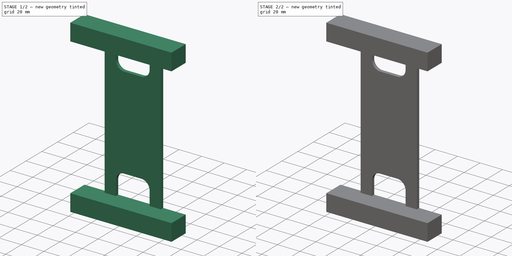
[diagram: build sequence overview — one tinted view per stage of 2, left to right]
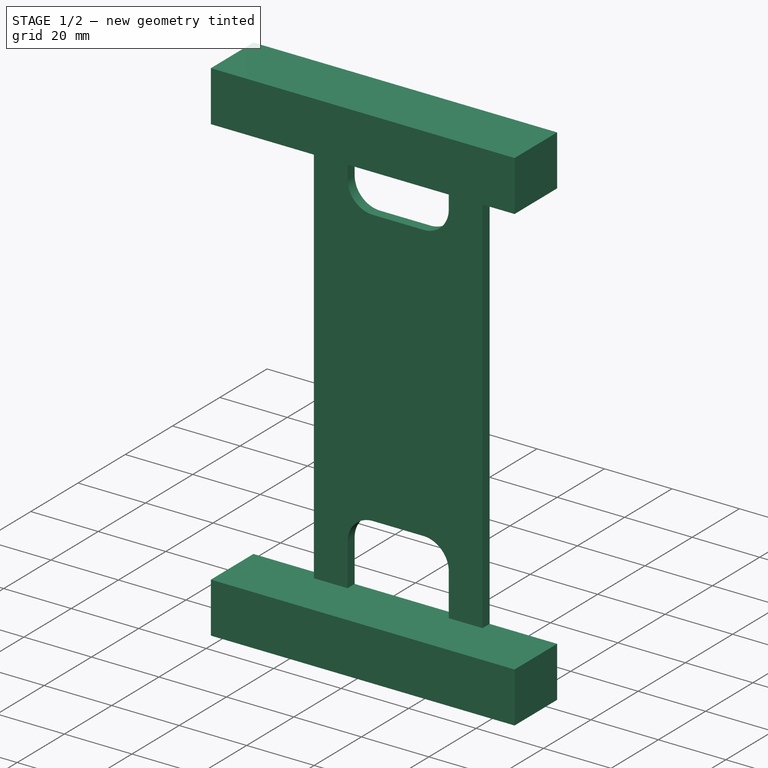
[diagram: stage 1 of 2 — iso view after this stage's code; geometry added in this stage tinted green]
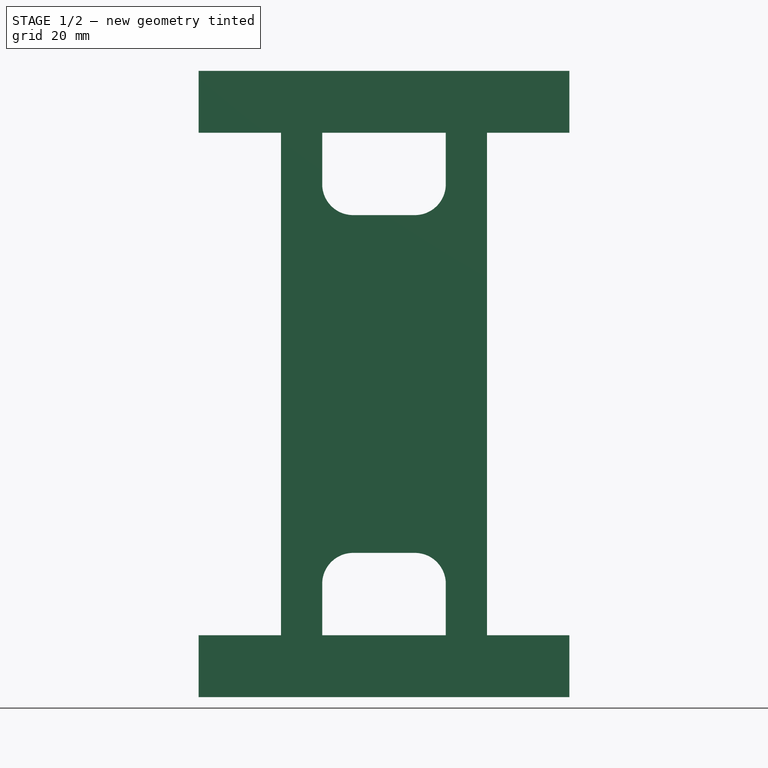
[diagram: stage 1 of 2 — front view after this stage's code; geometry added in this stage tinted green]
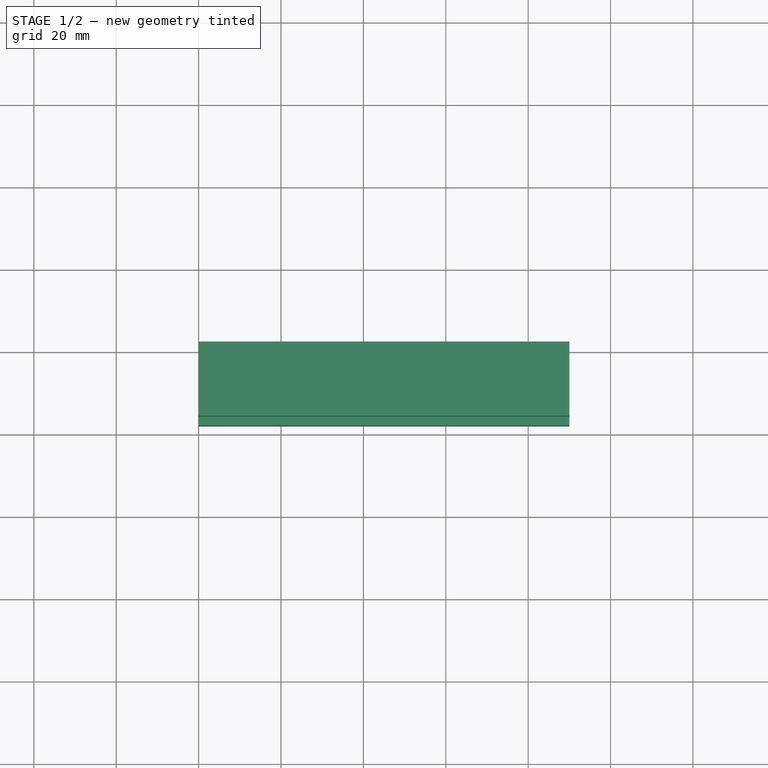
[diagram: stage 1 of 2 — top view after this stage's code; geometry added in this stage tinted green]
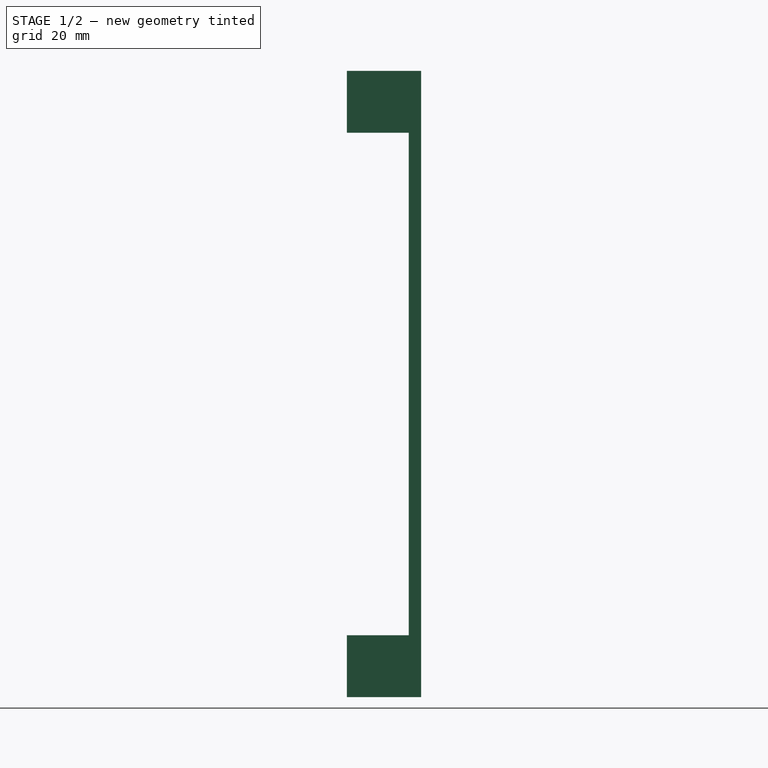
[diagram: stage 1 of 2 — right view after this stage's code; geometry added in this stage tinted green]
FCSTD DOCUMENT  (FreeCAD 1.0R39285 (Git))
Label: C1045 Rev 4
License: All rights reserved
LicenseURL: https://en.wikipedia.org/wiki/All_rights_reserved
objects: Sketcher::SketchObject×3, PartDesign::Pad×2, PartDesign::Pocket×1, PartDesign::Body×1, TechDraw::DrawSVGTemplate×1, TechDraw::DrawProjGroupItem×1, TechDraw::DrawViewDimension×1, TechDraw::DrawPage×1
note: 18 computed .brp shape members not serialized (recipe doc carries the construction recipe); baked Part::Feature solids carry a one-line shape summary decoded from their .brp

FEATURE [Sketcher::SketchObject] Sketch
  ArcFitTolerance = 1e-06
  AttachmentSupport = -> [XZ_Plane]
  FullyConstrained = true
  MakeInternals = false
  MapMode = 5
  Placement = pos=(0,0,0) rot=(1,0,0;1.5708rad)
  sketch-geometry (36):
    g0: LineSegment StartX=-3.6e-15 StartY=152 StartZ=0 EndX=-3.6e-15 EndY=137 EndZ=0
    g1: LineSegment StartX=-3.6e-15 StartY=152 StartZ=0 EndX=90 EndY=152 EndZ=0
    g2: LineSegment StartX=90 StartY=152 StartZ=0 EndX=90 EndY=137 EndZ=0
    g3: LineSegment StartX=-3.6e-15 StartY=15 StartZ=0 EndX=-3.6e-15 EndY=0 EndZ=0
    g4: LineSegment StartX=-3.6e-15 StartY=0 StartZ=0 EndX=90 EndY=0 EndZ=0
    g5: LineSegment StartX=90 StartY=0 StartZ=0 EndX=90 EndY=15 EndZ=0
    g6: LineSegment StartX=-3.6e-15 StartY=15 StartZ=0 EndX=20 EndY=15 EndZ=0
    g7: LineSegment StartX=20 StartY=15 StartZ=0 EndX=20 EndY=137 EndZ=0
    g8: LineSegment StartX=-3.6e-15 StartY=137 StartZ=0 EndX=20 EndY=137 EndZ=0
    g9: LineSegment StartX=90 StartY=137 StartZ=0 EndX=70 EndY=137 EndZ=0
    g10: LineSegment StartX=70 StartY=137 StartZ=0 EndX=70 EndY=15 EndZ=0
    g11: LineSegment StartX=70 StartY=15 StartZ=0 EndX=90 EndY=15 EndZ=0
    g12: LineSegment [constr] StartX=-3.6e-15 StartY=15 StartZ=0 EndX=90 EndY=15 EndZ=0
    g13: LineSegment [constr] StartX=-3.6e-15 StartY=137 StartZ=0 EndX=-3.6e-15 EndY=15 EndZ=0
    g14: LineSegment [constr] StartX=90 StartY=137 StartZ=0 EndX=90 EndY=15 EndZ=0
    g15: LineSegment [constr] StartX=90 StartY=137 StartZ=0 EndX=0 EndY=137 EndZ=0
    g16: LineSegment [constr] StartX=20 StartY=137 StartZ=0 EndX=70 EndY=137 EndZ=0
    g17: LineSegment [constr] StartX=70 StartY=15 StartZ=0 EndX=20 EndY=15 EndZ=0
    g18: ArcOfCircle CenterX=37.5 CenterY=124.5 CenterZ=0 NormalX=0 NormalY=0 NormalZ=1 AngleXU=0 Radius=7.5 StartAngle=3.14159 EndAngle=4.71239
    g19: ArcOfCircle CenterX=52.5 CenterY=124.5 CenterZ=0 NormalX=0 NormalY=0 NormalZ=1 AngleXU=0 Radius=7.5 StartAngle=4.71239 EndAngle=6.28319
    g20: ArcOfCircle CenterX=37.5 CenterY=27.5 CenterZ=0 NormalX=0 NormalY=0 NormalZ=1 AngleXU=0 Radius=7.5 StartAngle=1.5708 EndAngle=3.14159
    g21: ArcOfCircle CenterX=52.5 CenterY=27.5 CenterZ=0 NormalX=0 NormalY=0 NormalZ=1 AngleXU=0 Radius=7.5 StartAngle=1e-16 EndAngle=1.5708
    g22: LineSegment StartX=30 StartY=124.5 StartZ=0 EndX=30 EndY=137 EndZ=0
    g23: LineSegment StartX=60 StartY=124.5 StartZ=0 EndX=60 EndY=137 EndZ=0
    g24: LineSegment StartX=60 StartY=137 StartZ=0 EndX=30 EndY=137 EndZ=0
    g25: LineSegment [constr] StartX=30 StartY=137 StartZ=0 EndX=-3.6e-15 EndY=152 EndZ=0
    g26: LineSegment [constr] StartX=60 StartY=137 StartZ=0 EndX=90 EndY=152 EndZ=0
    g27: LineSegment StartX=37.5 StartY=117 StartZ=0 EndX=52.5 EndY=117 EndZ=0
    g28: LineSegment [constr] StartX=37.5 StartY=124.5 StartZ=0 EndX=52.5 EndY=124.5 EndZ=0
    g29: LineSegment StartX=30 StartY=27.5 StartZ=0 EndX=30 EndY=15 EndZ=0
    g30: LineSegment StartX=30 StartY=15 StartZ=0 EndX=60 EndY=15 EndZ=0
    g31: LineSegment StartX=60 StartY=15 StartZ=0 EndX=60 EndY=27.5 EndZ=0
    g32: LineSegment StartX=52.5 StartY=35 StartZ=0 EndX=37.5 EndY=35 EndZ=0
    g33: LineSegment [constr] StartX=60 StartY=27.5 StartZ=0 EndX=60 EndY=124.5 EndZ=0
    g34: LineSegment [constr] StartX=30 StartY=124.5 StartZ=0 EndX=30 EndY=27.5 EndZ=0
    g35: LineSegment [constr] StartX=30 StartY=15 StartZ=0 EndX=-3.6e-15 EndY=0 EndZ=0
  constraints (92):
    c: Coincident(g1,g0)
    c: Horizontal(g1)
    c: Coincident(g2,g1)
    c: Vertical(g3)
    c: Coincident(g4,g3)
    c: Horizontal(g4)
    c: Coincident(g5,g4)
    c: Vertical(g5)
    c: Coincident(g7,g6)
    c: Vertical(g7)
    c: Coincident(g10,g9)
    c: Vertical(g10)
    c: Coincident(g11,g10)
    c: Coincident(g3,g-1)
    c: DistanceX(g4,g4) = 90
    c: DistanceY(g3,g3) = 15
    c: Horizontal(g12)
    c: Horizontal(g15)
    c: Vertical(g13)
    c: Vertical(g14)
    c: Vertical(g0)
    c: Vertical(g2)
    c: Equal(g9,g8)
    c: Coincident(g16,g9)
    c: Coincident(g17,g10)
    c: Coincident(g17,g6)
    c: Horizontal(g17)
    c: Horizontal(g16)
    c: Equal(g6,g8)
    c: Equal(g0,g3)
    c: DistanceY(g13,g13) = 122
    c: DistanceX(g8,g8) = 20
    c: PointOnObject(g22,g15)
    c: Vertical(g22)
    c: PointOnObject(g23,g15)
    c: Vertical(g23)
    c: Coincident(g24,g23)
    c: Coincident(g24,g22)
    c: Coincident(g25,g22)
    c: Coincident(g25,g0)
    c: Coincident(g26,g23)
    c: Coincident(g26,g1)
    c: Equal(g26,g25)
    c: DistanceX(g24,g24) = 30
    c: Horizontal(g27)
    c: Tangent(g22,g18) = 1.5708
    c: Tangent(g27,g18) = -1.5708
    c: Tangent(g27,g19) = -1.5708
    c: Tangent(g23,g19) = -1.5708
    c: Coincident(g28,g18)
    c: Coincident(g28,g19)
    c: Horizontal(g28)
    c: Radius(g19) = 7.5
    c: DistanceY(g18,g22) = 20
    c: PointOnObject(g29,g12)
    c: Vertical(g29)
    c: Coincident(g30,g29)
    c: PointOnObject(g30,g12)
    c: Coincident(g31,g30)
    c: Horizontal(g32)
    c: Equal(g21,g20)
    c: Equal(g21,g19)
    c: Tangent(g31,g21) = -1.5708
    c: Tangent(g32,g21) = -1.5708
    c: Tangent(g32,g20) = -1.5708
    c: Tangent(g29,g20) = -1.5708
    c: Vertical(g31)
    c: Coincident(g33,g21)
    c: Tangent(g33,g19) = -1.5708
    c: Tangent(g34,g18) = -1.5708
    c: Coincident(g34,g20)
    c: Equal(g29,g22)
    c: Horizontal(g6)
    c: Horizontal(g11)
    c: Coincident(g5,g11)
    c: Coincident(g14,g5)
    c: PointOnObject(g12,g5)
    c: Coincident(g6,g13)
    c: Coincident(g6,g3)
    c: Coincident(g2,g9)
    c: Coincident(g2,g14)
    c: Horizontal(g9)
    c: Coincident(g8,g7)
    c: Coincident(g0,g8)
    c: Coincident(g0,g13)
    c: Coincident(g7,g16)
    c: PointOnObject(g15,g2)
    c: PointOnObject(g15,g0)
    c: Coincident(g35,g29)
    c: Coincident(g35,g3)
    c: Equal(g35,g25)
    c: Coincident(g12,g3)
FEATURE [PartDesign::Pad] Pad
  Direction = (0,-1,2e-16)
  Length = 3
  Length2 = 10
  Placement = pos=(0,0,0) rot=(1,0,0;1.5708rad)
  Profile = -> Sketch
  ReferenceAxis = -> Sketch [N_Axis]
  Refine = true
  Suppressed = false
  Type = 0
FEATURE [Sketcher::SketchObject] Sketch001
  ArcFitTolerance = 1e-06
  AttachmentSupport = -> [Pad]
  ExternalGeometry = -> [Pad]
  FullyConstrained = true
  MakeInternals = false
  MapMode = 5
  Placement = pos=(0,-3,0) rot=(1,0,0;1.5708rad)
  sketch-geometry (8):
    g0: LineSegment StartX=0 StartY=152 StartZ=0 EndX=0 EndY=137 EndZ=0
    g1: LineSegment StartX=90 StartY=137 StartZ=0 EndX=90 EndY=152 EndZ=0
    g2: LineSegment StartX=90 StartY=152 StartZ=0 EndX=0 EndY=152 EndZ=0
    g3: LineSegment StartX=0 StartY=15 StartZ=0 EndX=0 EndY=0 EndZ=0
    g4: LineSegment StartX=0 StartY=0 StartZ=0 EndX=90 EndY=0 EndZ=0
    g5: LineSegment StartX=90 StartY=0 StartZ=0 EndX=90 EndY=15 EndZ=0
    g6: LineSegment StartX=0 StartY=137 StartZ=0 EndX=90 EndY=137 EndZ=0
    g7: LineSegment StartX=0 StartY=15 StartZ=0 EndX=90 EndY=15 EndZ=0
  constraints (18):
    c: Coincident(g1,g2)
    c: Coincident(g2,g0)
    c: Vertical(g1)
    c: Horizontal(g2)
    c: Coincident(g0,g-5)
    c: Coincident(g3,g4)
    c: Coincident(g4,g5)
    c: Horizontal(g4)
    c: Vertical(g5)
    c: Coincident(g3,g-1)
    c: Coincident(g6,g0)
    c: Coincident(g-7,g0)
    c: Coincident(g7,g3)
    c: Coincident(g5,g-4)
    c: Coincident(g3,g-6)
    c: Coincident(g1,g6)
    c: Coincident(g1,g-3)
    c: Coincident(g5,g7)
FEATURE [PartDesign::Pad] Pad001
  BaseFeature = -> Pad
  Direction = (0,-1,2e-16)
  Length = 15
  Length2 = 10
  Placement = pos=(0,0,0) rot=(1,0,0;1.5708rad)
  Profile = -> Sketch001
  ReferenceAxis = -> Sketch001 [N_Axis]
  Refine = true
  Suppressed = false
  Type = 0
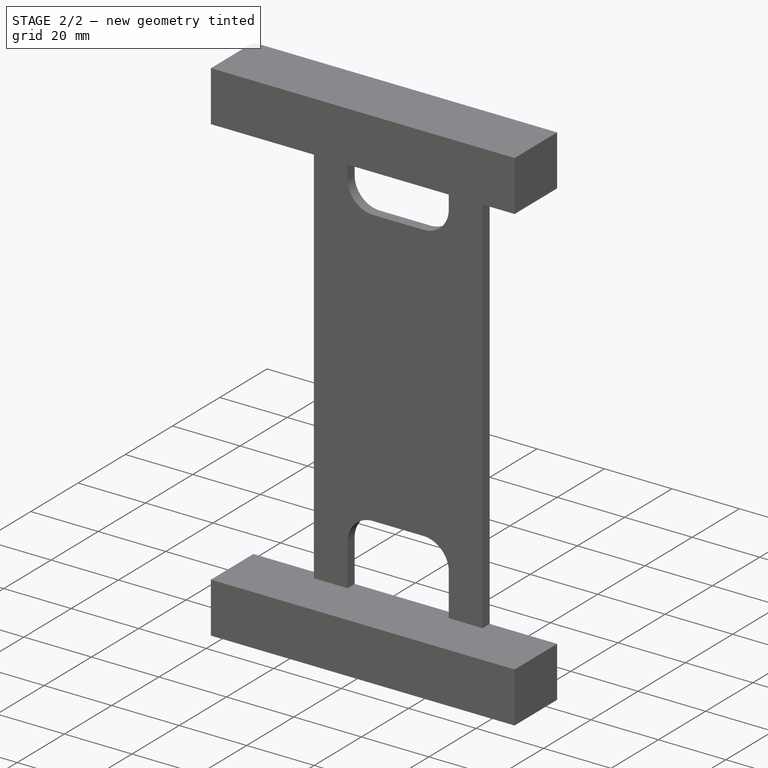
[diagram: stage 2 of 2 — iso view after this stage's code; geometry added in this stage tinted green]
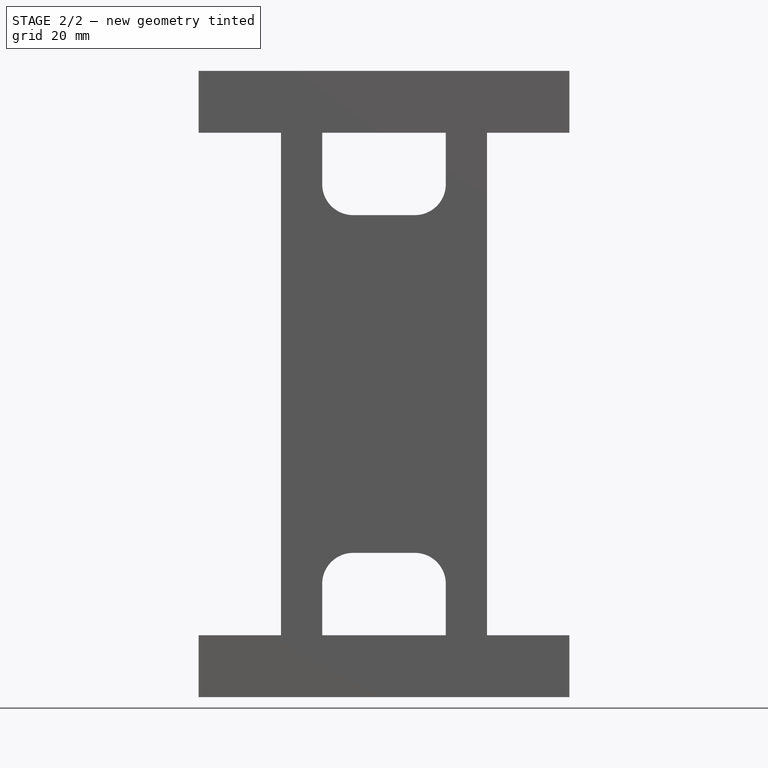
[diagram: stage 2 of 2 — front view after this stage's code; geometry added in this stage tinted green]
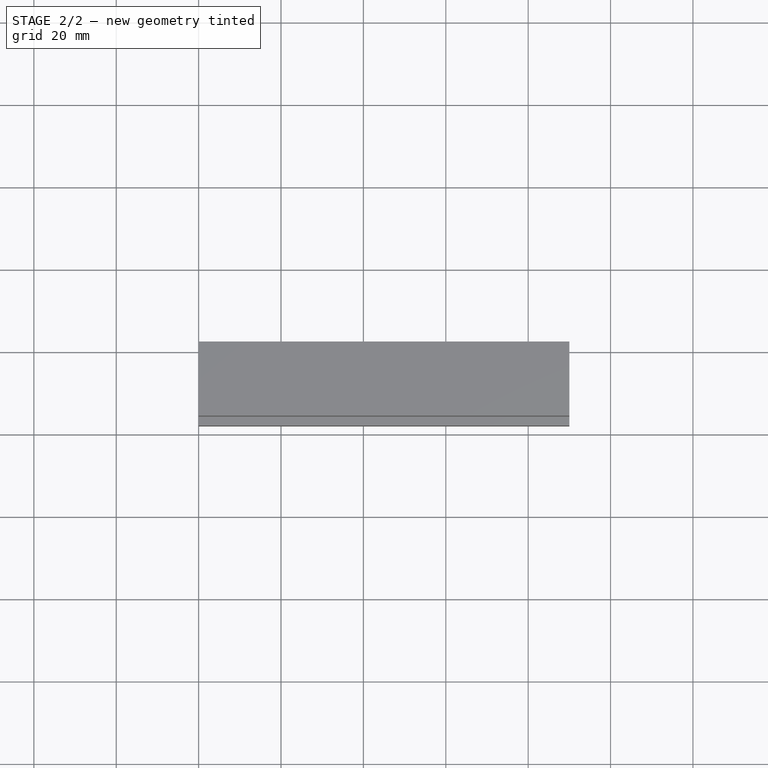
[diagram: stage 2 of 2 — top view after this stage's code; geometry added in this stage tinted green]
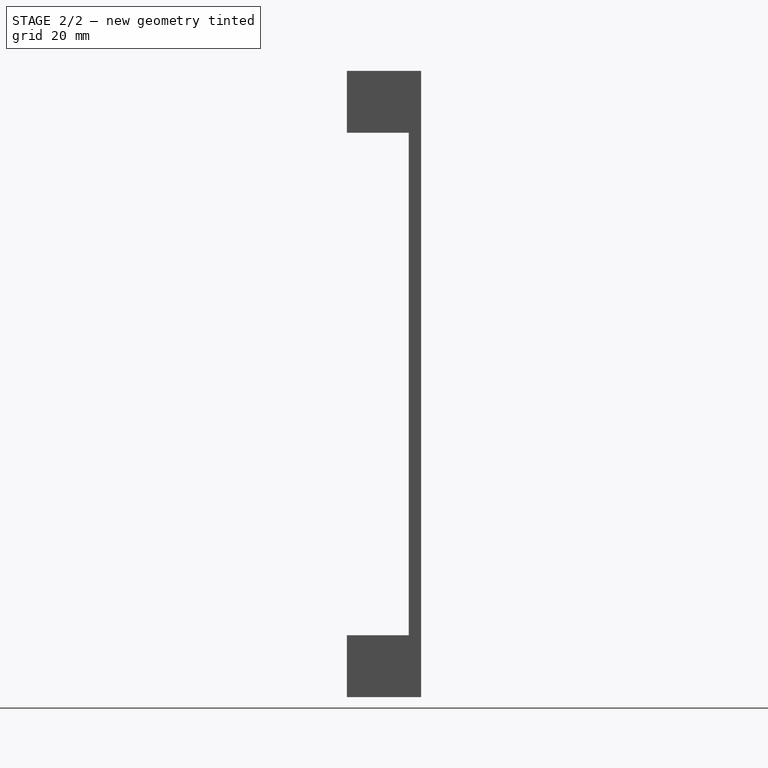
[diagram: stage 2 of 2 — right view after this stage's code; geometry added in this stage tinted green]
FEATURE [Sketcher::SketchObject] Sketch002
  ArcFitTolerance = 1e-06
  AttachmentSupport = -> [Pad001]
  ExternalGeometry = -> [Pad001]
  FullyConstrained = true
  MakeInternals = false
  MapMode = 5
  Placement = pos=(0,1.69e-14,0) rot=(-1,0,0;1.5708rad)
  sketch-geometry (11):
    g0: Circle CenterX=15 CenterY=-7.5 CenterZ=0 NormalX=0 NormalY=0 NormalZ=1 AngleXU=0 Radius=2.5
    g1: Circle CenterX=75 CenterY=-7.5 CenterZ=0 NormalX=0 NormalY=0 NormalZ=1 AngleXU=0 Radius=2.5
    g2: Circle CenterX=75 CenterY=-144.5 CenterZ=0 NormalX=0 NormalY=0 NormalZ=1 AngleXU=0 Radius=2.5
    g3: Circle CenterX=15 CenterY=-144.5 CenterZ=0 NormalX=0 NormalY=0 NormalZ=1 AngleXU=0 Radius=2.5
    g4: LineSegment [constr] StartX=75 StartY=-7.5 StartZ=0 EndX=15 EndY=-7.5 EndZ=0
    g5: LineSegment [constr] StartX=15 StartY=-7.5 StartZ=0 EndX=15 EndY=-144.5 EndZ=0
    g6: LineSegment [constr] StartX=15 StartY=-144.5 StartZ=0 EndX=75 EndY=-144.5 EndZ=0
    g7: LineSegment [constr] StartX=75 StartY=-144.5 StartZ=0 EndX=75 EndY=-7.5 EndZ=0
    g8: LineSegment [constr] StartX=15 StartY=-144.5 StartZ=0 EndX=-3.6e-15 EndY=-152 EndZ=0
    g9: LineSegment [constr] StartX=15 StartY=-7.5 StartZ=0 EndX=0 EndY=0 EndZ=0
    g10: LineSegment [constr] StartX=75 StartY=-7.5 StartZ=0 EndX=90 EndY=0 EndZ=0
  constraints (26):
    c: Equal(g2,g3)
    c: Equal(g3,g1)
    c: Equal(g1,g0)
    c: Diameter(g0) = 5
    c: Coincident(g4,g1)
    c: Coincident(g4,g0)
    c: Horizontal(g4)
    c: Coincident(g5,g0)
    c: Coincident(g5,g3)
    c: Vertical(g5)
    c: Coincident(g6,g3)
    c: Coincident(g6,g2)
    c: Horizontal(g6)
    c: Coincident(g7,g2)
    c: Coincident(g7,g1)
    c: Vertical(g7)
    c: Coincident(g8,g3)
    c: Coincident(g8,g-5)
    c: Coincident(g9,g0)
    c: Coincident(g9,g-1)
    c: Coincident(g10,g1)
    c: Coincident(g10,g-3)
    c: Equal(g10,g9)
    c: DistanceX(g9,g9) = 15
    c: DistanceY(g8,g8) = 7.5
    c: Equal(g9,g8)
FEATURE [PartDesign::Pocket] Pocket
  BaseFeature = -> Pad001
  Direction = (0,-1,-2e-16)
  Length = 10
  Length2 = 5
  Placement = pos=(0,0,0) rot=(1,0,0;1.5708rad)
  Profile = -> Sketch002
  ReferenceAxis = -> Sketch002 [N_Axis]
  Refine = true
  Suppressed = false
  Type = 0
FEATURE [PartDesign::Body] Body  label="C1045"
  AllowCompound = false
  Group = -> [Sketch,Pad,Sketch001,Pad001,Sketch002,Pocket]
  Origin = -> Origin
  Tip = -> Pocket
FEATURE [TechDraw::DrawSVGTemplate] Template
  Height = 210
  Orientation = 1
  Template = <path>
  Width = 297
FEATURE [TechDraw::DrawProjGroupItem] View
  CoarseView = false
  Direction = (0,-1,0)
  Focus = 100
  HardHidden = true
  IsoCount = 0
  IsoHidden = false
  IsoVisible = false
  LockPosition = false
  Perspective = false
  Rotation = 0
  RotationVector = (1,0,0)
  ScaleType = 0
  ScrubCount = 1
  SeamHidden = false
  SeamVisible = false
  SmoothHidden = true
  SmoothVisible = false
  Source = -> [Body]
  Type = 0
  X = 148.5
  XDirection = (1,0,0)
  Y = 104.826
FEATURE [TechDraw::DrawViewDimension] Dimension002
  AngleOverride = false
  Arbitrary = false
  ArbitraryTolerances = false
  BoxCorners = (2) [(-45,-71,0),(45,71,0)]
  EqualTolerance = true
  ExtensionAngle = 0
  FormatSpec = %.2w
  FormatSpecOverTolerance = %+.2w
  FormatSpecUnderTolerance = %+.2w
  Inverted = false
  LineAngle = 0
  LockPosition = false
  MeasureType = 1
  OverTolerance = 0
  References2D = -> [View]
  Rotation = 0
  ScaleType = 0
  TheoreticalExact = false
  Type = 2
  UnderTolerance = 0
  X = -100.5
  Y = 0
FEATURE [TechDraw::DrawPage] Page
  KeepUpdated = true
  NextBalloonIndex = 1
  ProjectionType = 0
  Template = -> Template
  Views = -> [View,Dimension002]
note: 1 file-system path scrubbed to <path> (originals preserved in the JSON sidecar)
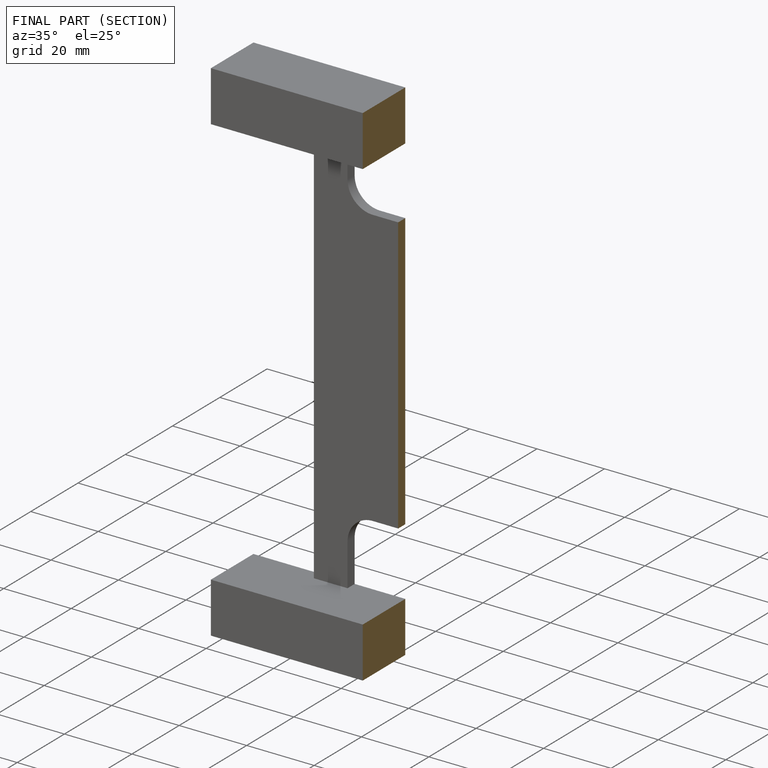
[diagram: finished part — half-section view (interior)]
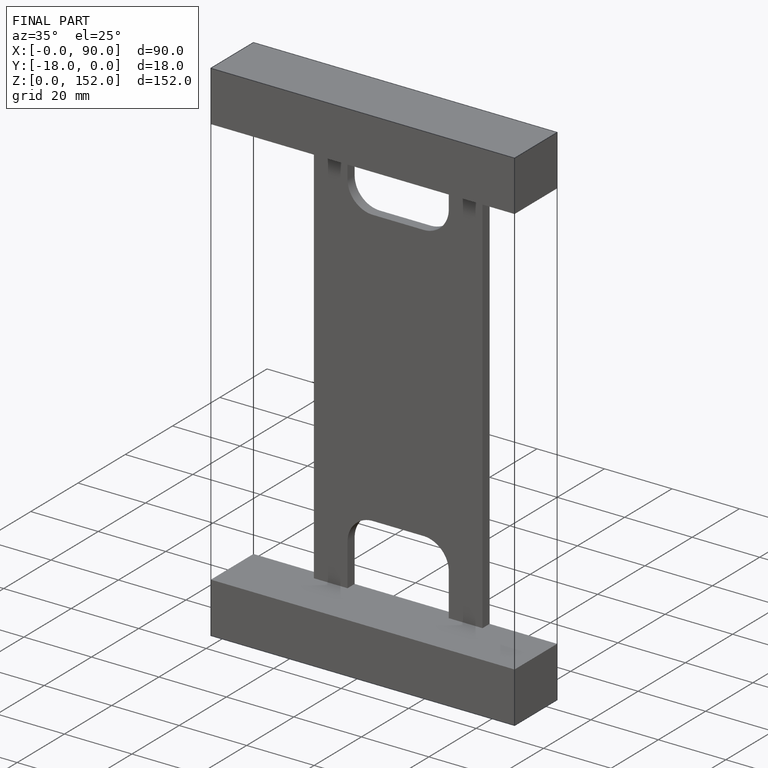
[diagram: finished part — iso view with bounding-box wireframe]
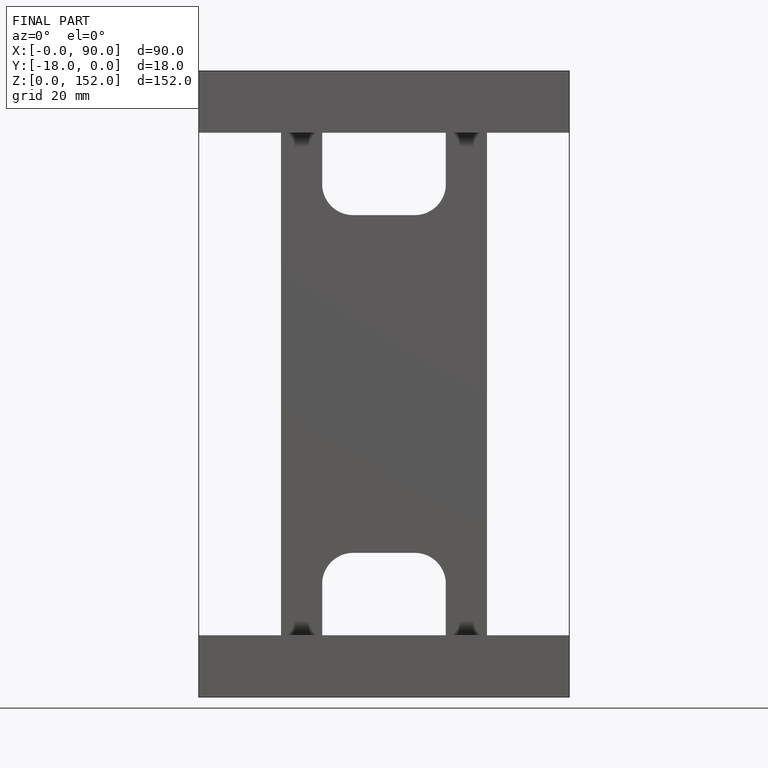
[diagram: finished part — front view with bounding-box wireframe]
